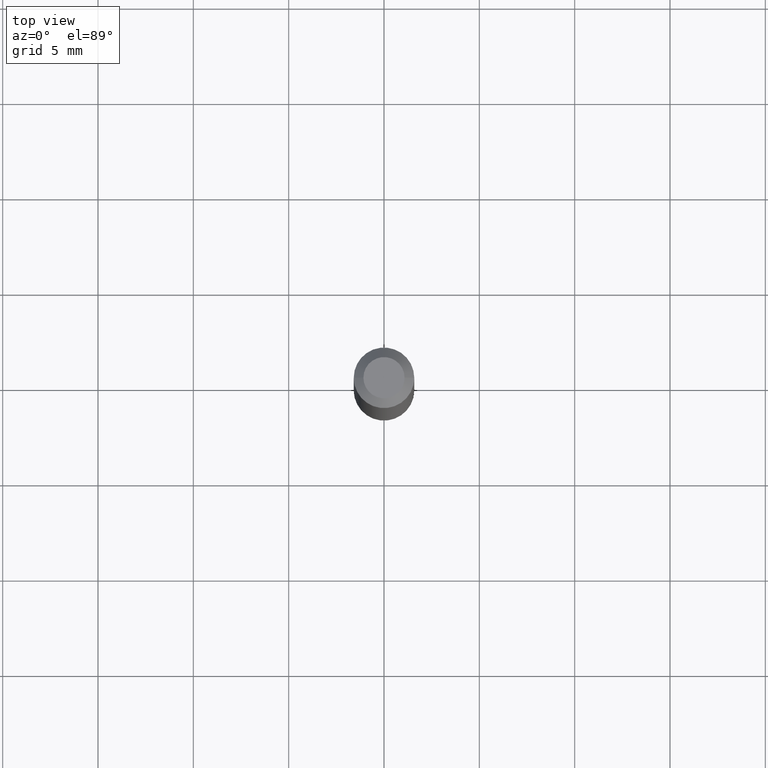
[diagram: clean part render]
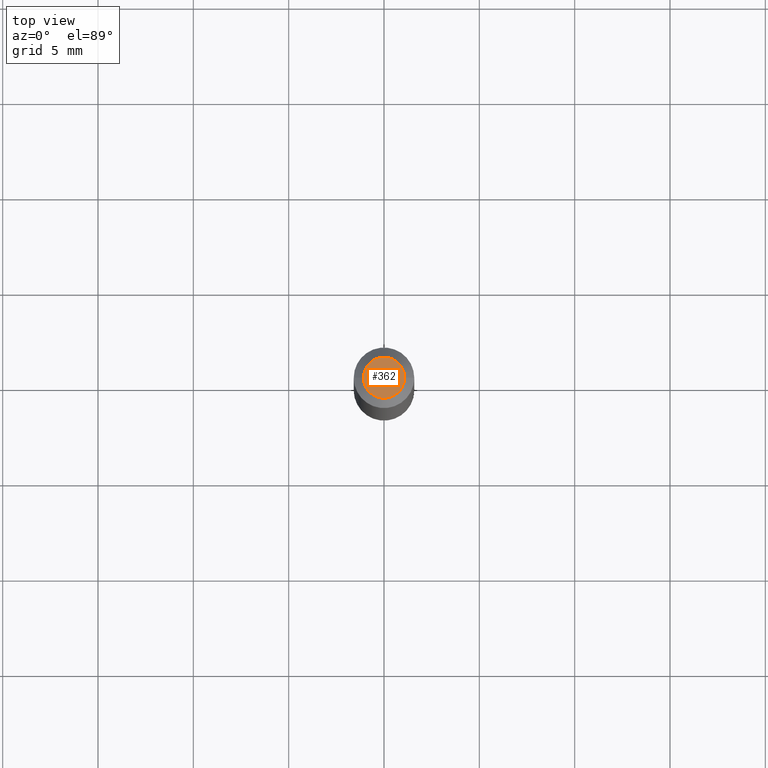
[diagram: same view with one face highlighted and labeled with its STEP entity id]
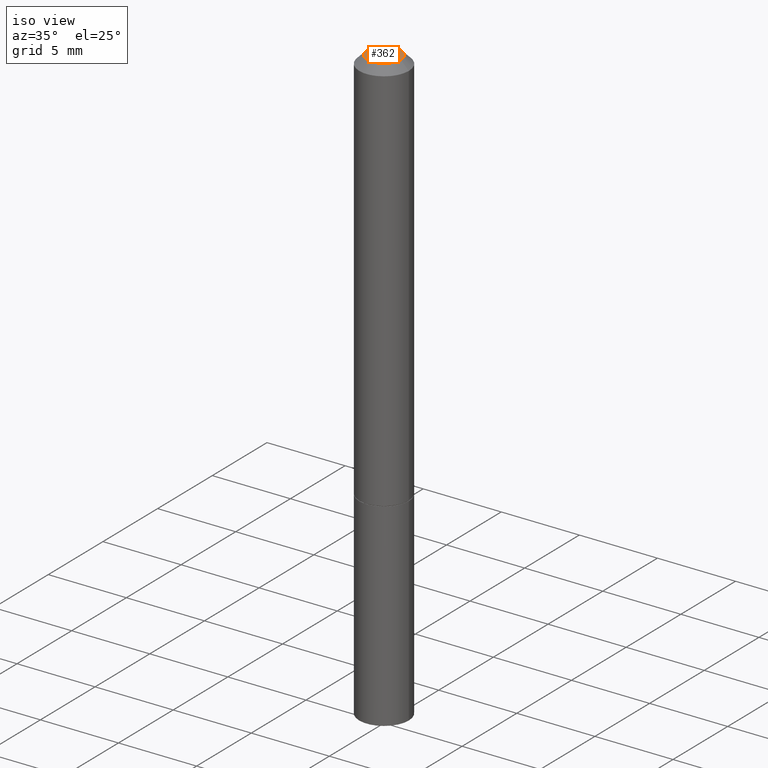
[diagram: same view with one face highlighted and labeled with its STEP entity id]
A machine part, top view. The second image highlights one B-rep face of the part: STEP entity #362.
A second angle (iso view) of the same face is appended — the face is thin or edge-on in the first view.
In plain terms, the highlighted planar face has unit normal (0, -0, -1).
Its self-contained STEP definition (entity closure, byte-faithful):
#27 = AXIS2_PLACEMENT_3D ( 'NONE', #136, #87, #242 ) ;
#32 = CARTESIAN_POINT ( 'NONE',  ( -0.04249999999999991979, 3.316907271900968207E-16, -2.134256245050425658E-17 ) ) ;
#78 = CARTESIAN_POINT ( 'NONE',  ( 2.967759138016657633E-16, 0.04249999999999991979, -1.590592381260844414E-16 ) ) ;
#87 = DIRECTION ( 'NONE',  ( -2.445468806185136597E-29, 3.491481338843145583E-15, 1.000000000000000000 ) ) ;
#136 = CARTESIAN_POINT ( 'NONE',  ( 5.219257071676098903E-46, -7.451715851902235727E-32, -2.134256245050205639E-17 ) ) ;
#160 = AXIS2_PLACEMENT_3D ( 'NONE', #78, #293, #352 ) ;
#161 = DIRECTION ( 'NONE',  ( -2.445468806185136597E-29, 3.491481338843145583E-15, 1.000000000000000000 ) ) ;
#168 = EDGE_LOOP ( 'NONE', ( #170, #291 ) ) ;
#170 = ORIENTED_EDGE ( 'NONE', *, *, #262, .T. ) ;
#181 = EDGE_CURVE ( 'NONE', #200, #256, #249, .T. ) ;
#200 = VERTEX_POINT ( 'NONE', #287 ) ;
#212 = FACE_OUTER_BOUND ( 'NONE', #168, .T. ) ;
#223 = PLANE ( 'NONE',  #160 ) ;
#242 = DIRECTION ( 'NONE',  ( 1.000000000000000000, -6.982962677686267499E-15, 4.879498284297452955E-29 ) ) ;
#249 = CIRCLE ( 'NONE', #27, 0.04249999999999991979 ) ;
#255 = CIRCLE ( 'NONE', #363, 0.04249999999999991979 ) ;
#256 = VERTEX_POINT ( 'NONE', #32 ) ;
#262 = EDGE_CURVE ( 'NONE', #256, #200, #255, .T. ) ;
#269 = DIRECTION ( 'NONE',  ( 1.000000000000000000, -6.982962677686267499E-15, 4.879498284297452955E-29 ) ) ;
#287 = CARTESIAN_POINT ( 'NONE',  ( 0.04249999999999991979, -3.950909582714362022E-16, -2.134256245049963743E-17 ) ) ;
#291 = ORIENTED_EDGE ( 'NONE', *, *, #181, .T. ) ;
#293 = DIRECTION ( 'NONE',  ( 2.438088387897960049E-29, -3.491481338843145188E-15, -1.000000000000000000 ) ) ;
#296 = CARTESIAN_POINT ( 'NONE',  ( 5.219257071676098903E-46, -7.451715851902235727E-32, -2.134256245050205639E-17 ) ) ;
#352 = DIRECTION ( 'NONE',  ( -1.000000000000000000, 6.982962677686265922E-15, -4.876176775795935793E-29 ) ) ;
#362 = ADVANCED_FACE ( 'NONE', ( #212 ), #223, .F. ) ;
#363 = AXIS2_PLACEMENT_3D ( 'NONE', #296, #161, #269 ) ;